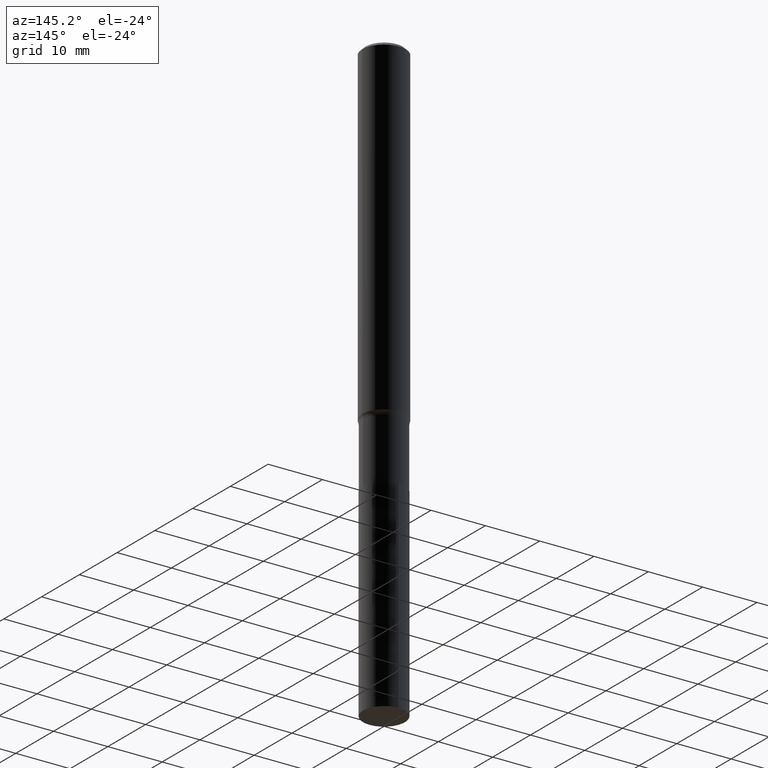
[diagram: clean part render]
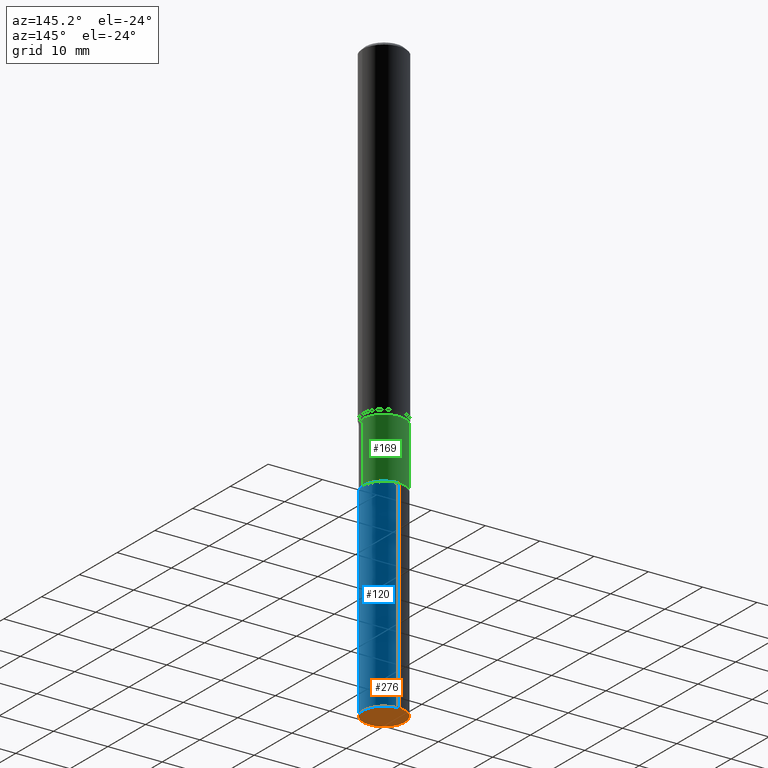
[diagram: same view with three faces highlighted in distinct colors, each labeled with its STEP entity id]
A machine part, auxiliary view with three faces highlighted in distinct colors.
Their STEP definitions:

[orange] entity #276 — the highlighted planar face has unit normal (-0, 0, 1).
#2 = DIRECTION ( 'NONE',  ( -2.445421097204986906E-29, 3.491549660818146744E-15, 1.000000000000000000 ) ) ;
#28 = DIRECTION ( 'NONE',  ( -6.982962677686265922E-15, -1.000000000000000000, 3.491549660818146744E-15 ) ) ;
#100 = VERTEX_POINT ( 'NONE', #244 ) ;
#117 = CIRCLE ( 'NONE', #177, 0.1515499999999999903 ) ;
#125 = ORIENTED_EDGE ( 'NONE', *, *, #362, .F. ) ;
#132 = EDGE_CURVE ( 'NONE', #212, #100, #159, .T. ) ;
#135 = AXIS2_PLACEMENT_3D ( 'NONE', #216, #211, #28 ) ;
#159 = CIRCLE ( 'NONE', #225, 0.1515499999999999903 ) ;
#177 = AXIS2_PLACEMENT_3D ( 'NONE', #320, #2, #287 ) ;
#211 = DIRECTION ( 'NONE',  ( -2.445421097204986346E-29, 3.491549660818146744E-15, 1.000000000000000000 ) ) ;
#212 = VERTEX_POINT ( 'NONE', #308 ) ;
#213 = FACE_OUTER_BOUND ( 'NONE', #355, .T. ) ;
#216 = CARTESIAN_POINT ( 'NONE',  ( -3.119662549071756984E-30, -3.073364184503111450E-14, -4.330700000000001104 ) ) ;
#225 = AXIS2_PLACEMENT_3D ( 'NONE', #385, #265, #300 ) ;
#244 = CARTESIAN_POINT ( 'NONE',  ( 1.076827516044519523E-15, 0.1515499999999848635, -4.330700000000001104 ) ) ;
#265 = DIRECTION ( 'NONE',  ( -2.445421097204986906E-29, 3.491549660818146744E-15, 1.000000000000000000 ) ) ;
#276 = ADVANCED_FACE ( 'NONE', ( #213 ), #438, .F. ) ;
#287 = DIRECTION ( 'NONE',  ( -6.982962677686265922E-15, -1.000000000000000000, 3.605210153301568306E-15 ) ) ;
#300 = DIRECTION ( 'NONE',  ( -6.982962677686265922E-15, -1.000000000000000000, 3.605210153301568306E-15 ) ) ;
#308 = CARTESIAN_POINT ( 'NONE',  ( -1.058267993803247621E-15, -0.1515500000000151171, -4.330700000000000216 ) ) ;
#320 = CARTESIAN_POINT ( 'NONE',  ( 1.059052181758107427E-28, -1.512065839414336504E-14, -4.330700000000001104 ) ) ;
#355 = EDGE_LOOP ( 'NONE', ( #440, #125 ) ) ;
#362 = EDGE_CURVE ( 'NONE', #100, #212, #117, .T. ) ;
#385 = CARTESIAN_POINT ( 'NONE',  ( 1.059052181758107427E-28, -1.512065839414336504E-14, -4.330700000000001104 ) ) ;
#438 = PLANE ( 'NONE',  #135 ) ;
#440 = ORIENTED_EDGE ( 'NONE', *, *, #132, .F. ) ;

[blue] entity #120 — the highlighted cylindrical surface (edge-blend (fillet) strip) has radius 3.8494 mm, axis along (-0, 0, 1).
#8 = ORIENTED_EDGE ( 'NONE', *, *, #351, .F. ) ;
#13 = LINE ( 'NONE', #228, #144 ) ;
#21 = CYLINDRICAL_SURFACE ( 'NONE', #430, 0.1515499999999999903 ) ;
#36 = ORIENTED_EDGE ( 'NONE', *, *, #132, .T. ) ;
#64 = EDGE_CURVE ( 'NONE', #212, #283, #402, .T. ) ;
#65 = DIRECTION ( 'NONE',  ( -6.982962677686265922E-15, -1.000000000000000000, 3.605210153301568306E-15 ) ) ;
#76 = CARTESIAN_POINT ( 'NONE',  ( -1.058267993803283515E-15, -0.1515500000000099823, -2.864700000000000024 ) ) ;
#98 = EDGE_LOOP ( 'NONE', ( #36, #179, #8, #255 ) ) ;
#100 = VERTEX_POINT ( 'NONE', #244 ) ;
#118 = DIRECTION ( 'NONE',  ( -6.982962677686265922E-15, -1.000000000000000000, 3.605210153301568306E-15 ) ) ;
#120 = ADVANCED_FACE ( 'NONE', ( #447 ), #21, .T. ) ;
#132 = EDGE_CURVE ( 'NONE', #212, #100, #159, .T. ) ;
#144 = VECTOR ( 'NONE', #267, 39.37007874015748143 ) ;
#159 = CIRCLE ( 'NONE', #225, 0.1515499999999999903 ) ;
#168 = DIRECTION ( 'NONE',  ( -2.445421097204986906E-29, 3.491549660818146744E-15, 1.000000000000000000 ) ) ;
#179 = ORIENTED_EDGE ( 'NONE', *, *, #453, .T. ) ;
#212 = VERTEX_POINT ( 'NONE', #308 ) ;
#225 = AXIS2_PLACEMENT_3D ( 'NONE', #385, #265, #300 ) ;
#228 = CARTESIAN_POINT ( 'NONE',  ( 1.076827516044501577E-15, 0.1515499999999899705, -2.864700000000001356 ) ) ;
#232 = CARTESIAN_POINT ( 'NONE',  ( 7.005534489078562059E-29, -1.000204659138396250E-14, -2.864700000000000912 ) ) ;
#244 = CARTESIAN_POINT ( 'NONE',  ( 1.076827516044519523E-15, 0.1515499999999848635, -4.330700000000001104 ) ) ;
#247 = CIRCLE ( 'NONE', #347, 0.1515499999999999903 ) ;
#255 = ORIENTED_EDGE ( 'NONE', *, *, #64, .F. ) ;
#261 = VECTOR ( 'NONE', #363, 39.37007874015748143 ) ;
#265 = DIRECTION ( 'NONE',  ( -2.445421097204986906E-29, 3.491549660818146744E-15, 1.000000000000000000 ) ) ;
#267 = DIRECTION ( 'NONE',  ( -2.445421097204986906E-29, 3.491549660818146744E-15, 1.000000000000000000 ) ) ;
#268 = DIRECTION ( 'NONE',  ( -2.445421097204986906E-29, 3.491549660818146744E-15, 1.000000000000000000 ) ) ;
#283 = VERTEX_POINT ( 'NONE', #431 ) ;
#300 = DIRECTION ( 'NONE',  ( -6.982962677686265922E-15, -1.000000000000000000, 3.605210153301568306E-15 ) ) ;
#308 = CARTESIAN_POINT ( 'NONE',  ( -1.058267993803247621E-15, -0.1515500000000151171, -4.330700000000000216 ) ) ;
#347 = AXIS2_PLACEMENT_3D ( 'NONE', #396, #168, #65 ) ;
#351 = EDGE_CURVE ( 'NONE', #283, #468, #247, .T. ) ;
#363 = DIRECTION ( 'NONE',  ( -2.445421097204986906E-29, 3.491549660818146744E-15, 1.000000000000000000 ) ) ;
#385 = CARTESIAN_POINT ( 'NONE',  ( 1.059052181758107427E-28, -1.512065839414336504E-14, -4.330700000000001104 ) ) ;
#396 = CARTESIAN_POINT ( 'NONE',  ( 7.005534489078562059E-29, -1.000204659138396250E-14, -2.864700000000000912 ) ) ;
#402 = LINE ( 'NONE', #76, #261 ) ;
#430 = AXIS2_PLACEMENT_3D ( 'NONE', #232, #268, #118 ) ;
#431 = CARTESIAN_POINT ( 'NONE',  ( -1.058267993803283515E-15, -0.1515500000000099823, -2.864700000000000024 ) ) ;
#441 = CARTESIAN_POINT ( 'NONE',  ( 1.076827516044537667E-15, 0.1515499999999899705, -2.864700000000001356 ) ) ;
#447 = FACE_OUTER_BOUND ( 'NONE', #98, .T. ) ;
#453 = EDGE_CURVE ( 'NONE', #100, #468, #13, .T. ) ;
#468 = VERTEX_POINT ( 'NONE', #441 ) ;

[green] entity #169 — the highlighted cylindrical surface (edge-blend (fillet) strip) has radius 3.8494 mm, axis along (-0, 0, 1).
#5 = VECTOR ( 'NONE', #112, 39.37007874015748143 ) ;
#12 = DIRECTION ( 'NONE',  ( 1.000000000000000000, -6.982962677686268288E-15, 0.000000000000000000 ) ) ;
#29 = EDGE_CURVE ( 'NONE', #248, #220, #289, .T. ) ;
#47 = LINE ( 'NONE', #241, #127 ) ;
#58 = VERTEX_POINT ( 'NONE', #442 ) ;
#75 = DIRECTION ( 'NONE',  ( -2.445468806185136597E-29, 3.491481338843145583E-15, 1.000000000000000000 ) ) ;
#81 = ORIENTED_EDGE ( 'NONE', *, *, #176, .T. ) ;
#99 = DIRECTION ( 'NONE',  ( 1.000000000000000000, -6.982962677686265922E-15, 4.876176775795935232E-29 ) ) ;
#112 = DIRECTION ( 'NONE',  ( -2.445468806185136877E-29, 3.491481338843145188E-15, 1.000000000000000000 ) ) ;
#127 = VECTOR ( 'NONE', #452, 39.37007874015748143 ) ;
#155 = EDGE_CURVE ( 'NONE', #248, #58, #354, .T. ) ;
#156 = FACE_OUTER_BOUND ( 'NONE', #384, .T. ) ;
#169 = ADVANCED_FACE ( 'NONE', ( #156 ), #230, .T. ) ;
#176 = EDGE_CURVE ( 'NONE', #58, #386, #47, .T. ) ;
#191 = DIRECTION ( 'NONE',  ( 1.000000000000000000, -6.982962677686264344E-15, 0.000000000000000000 ) ) ;
#202 = CARTESIAN_POINT ( 'NONE',  ( 0.000000000000000000, 0.000000000000000000, 0.000000000000000000 ) ) ;
#220 = VERTEX_POINT ( 'NONE', #236 ) ;
#230 = CYLINDRICAL_SURFACE ( 'NONE', #332, 0.1515499999999999625 ) ;
#234 = CIRCLE ( 'NONE', #304, 0.1515499999999999348 ) ;
#236 = CARTESIAN_POINT ( 'NONE',  ( 0.1515499999999999348, -9.543265943459966118E-15, -2.430200000000000138 ) ) ;
#241 = CARTESIAN_POINT ( 'NONE',  ( -0.1515499999999999625, 1.076827516044431565E-15, -7.454646129281306909E-30 ) ) ;
#248 = VERTEX_POINT ( 'NONE', #250 ) ;
#250 = CARTESIAN_POINT ( 'NONE',  ( 0.1515499999999999903, -1.105856884451789432E-14, -2.864200000000000745 ) ) ;
#289 = LINE ( 'NONE', #445, #5 ) ;
#304 = AXIS2_PLACEMENT_3D ( 'NONE', #359, #75, #191 ) ;
#313 = ORIENTED_EDGE ( 'NONE', *, *, #29, .F. ) ;
#318 = ORIENTED_EDGE ( 'NONE', *, *, #155, .T. ) ;
#329 = DIRECTION ( 'NONE',  ( -2.445468806185136597E-29, 3.491481338843145583E-15, 1.000000000000000000 ) ) ;
#332 = AXIS2_PLACEMENT_3D ( 'NONE', #202, #370, #99 ) ;
#337 = AXIS2_PLACEMENT_3D ( 'NONE', #372, #329, #12 ) ;
#354 = CIRCLE ( 'NONE', #337, 0.1515499999999999903 ) ;
#359 = CARTESIAN_POINT ( 'NONE',  ( 5.942978292791119365E-29, -8.484997949656613578E-15, -2.430200000000000138 ) ) ;
#370 = DIRECTION ( 'NONE',  ( -2.445468806185136597E-29, 3.491481338843145583E-15, 1.000000000000000000 ) ) ;
#372 = CARTESIAN_POINT ( 'NONE',  ( 7.004311754675469257E-29, -1.000030085071454021E-14, -2.864200000000000745 ) ) ;
#382 = ORIENTED_EDGE ( 'NONE', *, *, #408, .F. ) ;
#384 = EDGE_LOOP ( 'NONE', ( #318, #81, #382, #313 ) ) ;
#386 = VERTEX_POINT ( 'NONE', #451 ) ;
#408 = EDGE_CURVE ( 'NONE', #220, #386, #234, .T. ) ;
#442 = CARTESIAN_POINT ( 'NONE',  ( -0.1515499999999999903, -8.165821884141145327E-15, -2.864200000000000745 ) ) ;
#445 = CARTESIAN_POINT ( 'NONE',  ( 0.1515499999999999625, -1.058267993803353329E-15, 7.389845903718738166E-30 ) ) ;
#451 = CARTESIAN_POINT ( 'NONE',  ( -0.1515499999999999348, -8.165821884141145327E-15, -2.430200000000000138 ) ) ;
#452 = DIRECTION ( 'NONE',  ( -2.445468806185136877E-29, 3.491481338843145188E-15, 1.000000000000000000 ) ) ;